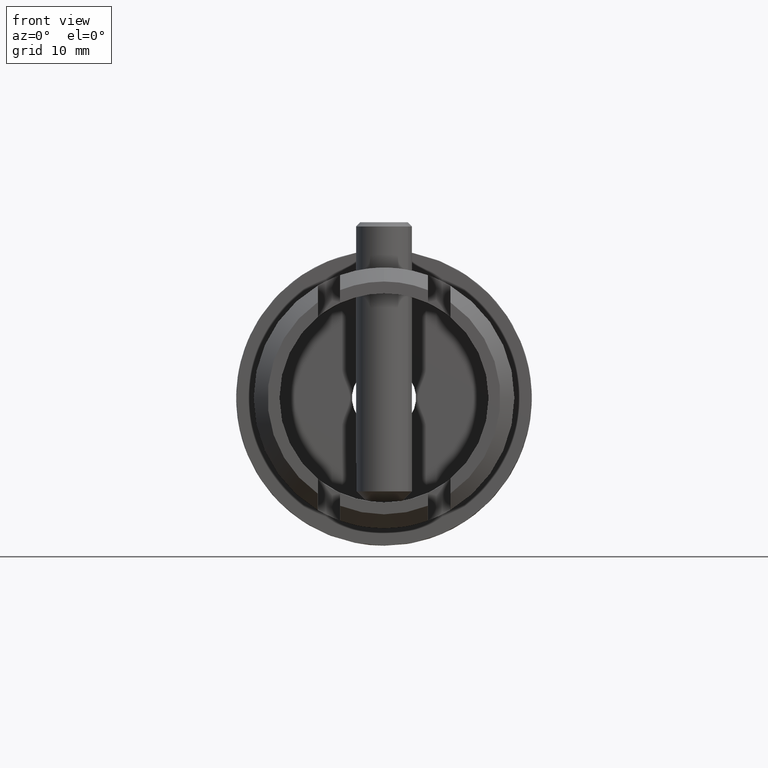
[diagram: clean part render]
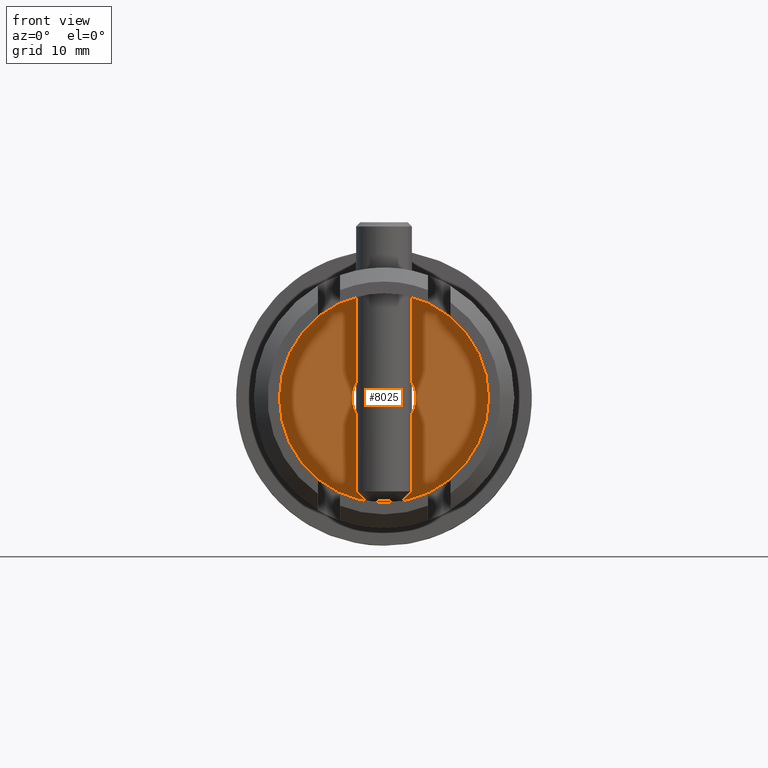
[diagram: same view with one face highlighted and labeled with its STEP entity id]
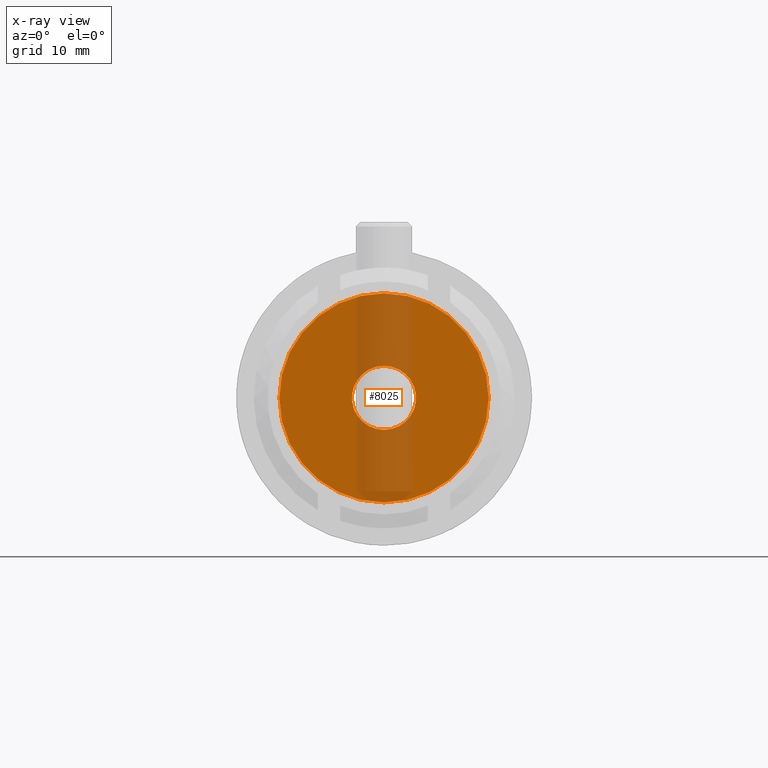
[diagram: x-ray of the same camera — body ghosted, the highlighted face saturated]
A machine part, front view. The second image highlights one B-rep face of the part: STEP entity #8025.
The next image is the same camera in x-ray: the body ghosted, the highlighted face saturated — about 27% of this face is hidden behind the body in this view.
In plain terms, the highlighted planar face has unit normal (0, -1, 0).
Its self-contained STEP definition (entity closure, byte-faithful):
#129 = ORIENTED_EDGE ( 'NONE', *, *, #7939, .T. ) ;
#304 = AXIS2_PLACEMENT_3D ( 'NONE', #8351, #9471, #10689 ) ;
#398 = CARTESIAN_POINT ( 'NONE',  ( 0.0000000000000000000, 9.000000000000001800, 0.0000000000000000000 ) ) ;
#928 = AXIS2_PLACEMENT_3D ( 'NONE', #7308, #5186, #12673 ) ;
#1515 = CARTESIAN_POINT ( 'NONE',  ( 0.0000000000000000000, 9.000000000000001800, 0.0000000000000000000 ) ) ;
#2111 = EDGE_CURVE ( 'NONE', #7871, #8683, #7537, .T. ) ;
#2390 = ORIENTED_EDGE ( 'NONE', *, *, #4032, .T. ) ;
#3114 = VERTEX_POINT ( 'NONE', #8397 ) ;
#3126 = CARTESIAN_POINT ( 'NONE',  ( 5.633375276077824100E-016, 9.000000000000001800, -4.599999999999999600 ) ) ;
#3821 = FACE_BOUND ( 'NONE', #11133, .T. ) ;
#3940 = CIRCLE ( 'NONE', #304, 4.599999999999999600 ) ;
#4032 = EDGE_CURVE ( 'NONE', #12937, #3114, #9165, .T. ) ;
#4101 = PLANE ( 'NONE',  #928 ) ;
#4491 = DIRECTION ( 'NONE',  ( 0.0000000000000000000, 0.0000000000000000000, -1.000000000000000000 ) ) ;
#4501 = CIRCLE ( 'NONE', #10941, 15.00000000000000000 ) ;
#4561 = EDGE_LOOP ( 'NONE', ( #129, #4896 ) ) ;
#4896 = ORIENTED_EDGE ( 'NONE', *, *, #2111, .T. ) ;
#5108 = AXIS2_PLACEMENT_3D ( 'NONE', #5481, #5386, #4491 ) ;
#5186 = DIRECTION ( 'NONE',  ( 0.0000000000000000000, -1.000000000000000000, 0.0000000000000000000 ) ) ;
#5386 = DIRECTION ( 'NONE',  ( 0.0000000000000000000, -1.000000000000000000, 0.0000000000000000000 ) ) ;
#5481 = CARTESIAN_POINT ( 'NONE',  ( 0.0000000000000000000, 9.000000000000001800, 0.0000000000000000000 ) ) ;
#6428 = ORIENTED_EDGE ( 'NONE', *, *, #10802, .T. ) ;
#6888 = CARTESIAN_POINT ( 'NONE',  ( 1.836970198721029600E-015, 9.000000000000001800, 15.00000000000000000 ) ) ;
#6977 = DIRECTION ( 'NONE',  ( -0.0000000000000000000, 1.000000000000000000, -0.0000000000000000000 ) ) ;
#7308 = CARTESIAN_POINT ( 'NONE',  ( 0.0000000000000000000, 9.000000000000001800, 0.0000000000000000000 ) ) ;
#7324 = FACE_OUTER_BOUND ( 'NONE', #4561, .T. ) ;
#7537 = CIRCLE ( 'NONE', #5108, 15.00000000000000000 ) ;
#7871 = VERTEX_POINT ( 'NONE', #6888 ) ;
#7939 = EDGE_CURVE ( 'NONE', #8683, #7871, #4501, .T. ) ;
#8025 = ADVANCED_FACE ( 'NONE', ( #7324, #3821 ), #4101, .T. ) ;
#8045 = DIRECTION ( 'NONE',  ( 0.0000000000000000000, 0.0000000000000000000, -1.000000000000000000 ) ) ;
#8351 = CARTESIAN_POINT ( 'NONE',  ( 0.0000000000000000000, 9.000000000000001800, 0.0000000000000000000 ) ) ;
#8397 = CARTESIAN_POINT ( 'NONE',  ( 0.0000000000000000000, 9.000000000000001800, 4.599999999999999600 ) ) ;
#8584 = AXIS2_PLACEMENT_3D ( 'NONE', #1515, #6977, #8045 ) ;
#8683 = VERTEX_POINT ( 'NONE', #10414 ) ;
#8943 = DIRECTION ( 'NONE',  ( 0.0000000000000000000, -1.000000000000000000, 0.0000000000000000000 ) ) ;
#9165 = CIRCLE ( 'NONE', #8584, 4.599999999999999600 ) ;
#9471 = DIRECTION ( 'NONE',  ( -0.0000000000000000000, 1.000000000000000000, -0.0000000000000000000 ) ) ;
#10414 = CARTESIAN_POINT ( 'NONE',  ( 0.0000000000000000000, 9.000000000000001800, -15.00000000000000000 ) ) ;
#10689 = DIRECTION ( 'NONE',  ( 0.0000000000000000000, 0.0000000000000000000, -1.000000000000000000 ) ) ;
#10802 = EDGE_CURVE ( 'NONE', #3114, #12937, #3940, .T. ) ;
#10941 = AXIS2_PLACEMENT_3D ( 'NONE', #398, #8943, #11105 ) ;
#11105 = DIRECTION ( 'NONE',  ( 0.0000000000000000000, 0.0000000000000000000, -1.000000000000000000 ) ) ;
#11133 = EDGE_LOOP ( 'NONE', ( #6428, #2390 ) ) ;
#12673 = DIRECTION ( 'NONE',  ( 0.0000000000000000000, -0.0000000000000000000, -1.000000000000000000 ) ) ;
#12937 = VERTEX_POINT ( 'NONE', #3126 ) ;